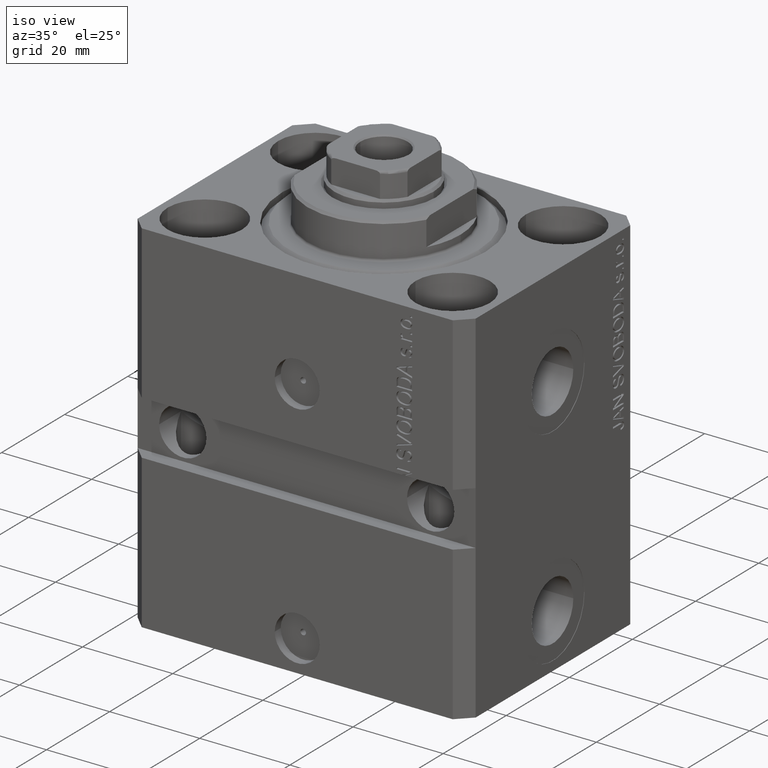
[diagram: clean part render]
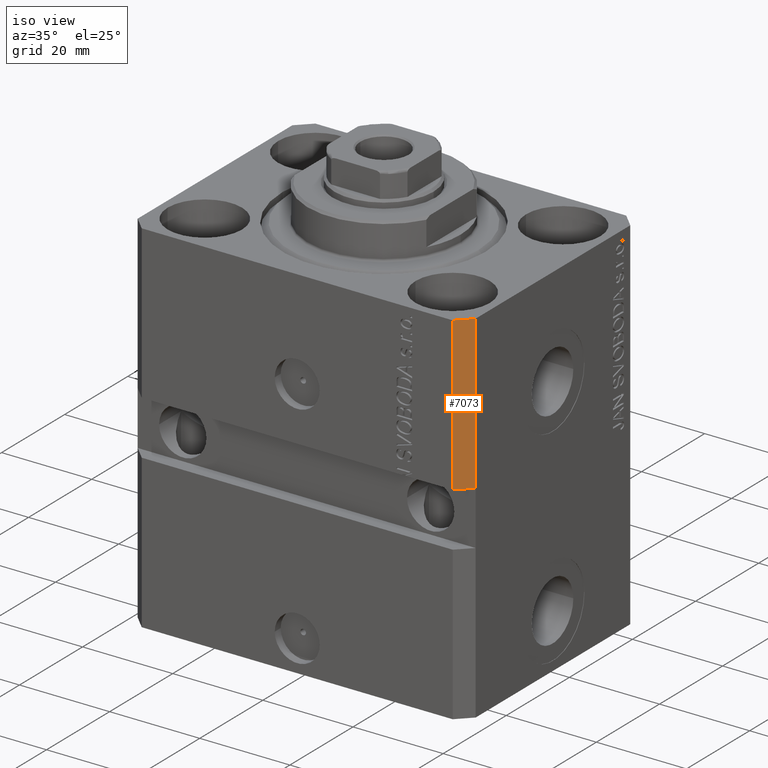
[diagram: same view with one face highlighted and labeled with its STEP entity id]
A machine part, iso view. The second image highlights one B-rep face of the part: STEP entity #7073.
In plain terms, the highlighted planar face has unit normal (0.7071, -0.7071, 0).
Its self-contained STEP definition (entity closure, byte-faithful):
#366 = VERTEX_POINT ( 'NONE', #10193 ) ;
#475 = FACE_OUTER_BOUND ( 'NONE', #25704, .T. ) ;
#598 = ORIENTED_EDGE ( 'NONE', *, *, #15013, .F. ) ;
#695 = DIRECTION ( 'NONE',  ( 0.7071067811865474617, 0.7071067811865474617, 0.000000000000000000 ) ) ;
#1530 = LINE ( 'NONE', #12574, #39055 ) ;
#7073 = ADVANCED_FACE ( 'NONE', ( #475 ), #18043, .T. ) ;
#7163 = VERTEX_POINT ( 'NONE', #8335 ) ;
#8035 = DIRECTION ( 'NONE',  ( -0.7071067811865474617, -0.7071067811865474617, -1.308410382236479511E-16 ) ) ;
#8335 = CARTESIAN_POINT ( 'NONE',  ( 34.49999999999999289, -27.49999999999999289, -33.99999999999998579 ) ) ;
#8467 = EDGE_CURVE ( 'NONE', #366, #7163, #14817, .T. ) ;
#8583 = AXIS2_PLACEMENT_3D ( 'NONE', #34997, #41541, #695 ) ;
#10193 = CARTESIAN_POINT ( 'NONE',  ( 37.49999999999999289, -24.49999999999999289, -33.99999999999998579 ) ) ;
#12574 = CARTESIAN_POINT ( 'NONE',  ( 37.49999999999999289, -24.50000000000000000, -80.00000000000000000 ) ) ;
#13551 = VERTEX_POINT ( 'NONE', #42171 ) ;
#13638 = EDGE_CURVE ( 'NONE', #366, #13551, #1530, .T. ) ;
#14817 = LINE ( 'NONE', #35136, #36038 ) ;
#15013 = EDGE_CURVE ( 'NONE', #7163, #24788, #19213, .T. ) ;
#16360 = CARTESIAN_POINT ( 'NONE',  ( 34.49999999999999289, -27.49999999999999645, 0.000000000000000000 ) ) ;
#17874 = ORIENTED_EDGE ( 'NONE', *, *, #13638, .T. ) ;
#18043 = PLANE ( 'NONE',  #8583 ) ;
#18343 = DIRECTION ( 'NONE',  ( 0.000000000000000000, 0.000000000000000000, 1.000000000000000000 ) ) ;
#19213 = LINE ( 'NONE', #39757, #23226 ) ;
#23226 = VECTOR ( 'NONE', #18343, 1000.000000000000000 ) ;
#24788 = VERTEX_POINT ( 'NONE', #31355 ) ;
#25704 = EDGE_LOOP ( 'NONE', ( #31661, #17874, #38954, #598 ) ) ;
#27596 = EDGE_CURVE ( 'NONE', #24788, #13551, #44133, .T. ) ;
#31355 = CARTESIAN_POINT ( 'NONE',  ( 34.49999999999999289, -27.49999999999999645, 0.000000000000000000 ) ) ;
#31661 = ORIENTED_EDGE ( 'NONE', *, *, #8467, .F. ) ;
#34997 = CARTESIAN_POINT ( 'NONE',  ( 34.49999999999999289, -27.49999999999999645, -80.00000000000000000 ) ) ;
#35136 = CARTESIAN_POINT ( 'NONE',  ( 34.49999999999998579, -27.50000000000000000, -33.99999999999998579 ) ) ;
#36038 = VECTOR ( 'NONE', #8035, 1000.000000000000114 ) ;
#36692 = DIRECTION ( 'NONE',  ( 0.7071067811865474617, 0.7071067811865474617, 0.000000000000000000 ) ) ;
#37181 = VECTOR ( 'NONE', #36692, 1000.000000000000114 ) ;
#38954 = ORIENTED_EDGE ( 'NONE', *, *, #27596, .F. ) ;
#39055 = VECTOR ( 'NONE', #39869, 1000.000000000000000 ) ;
#39757 = CARTESIAN_POINT ( 'NONE',  ( 34.49999999999999289, -27.49999999999999645, -80.00000000000000000 ) ) ;
#39869 = DIRECTION ( 'NONE',  ( 0.000000000000000000, 0.000000000000000000, 1.000000000000000000 ) ) ;
#41541 = DIRECTION ( 'NONE',  ( 0.7071067811865475727, -0.7071067811865475727, 0.000000000000000000 ) ) ;
#42171 = CARTESIAN_POINT ( 'NONE',  ( 37.49999999999999289, -24.50000000000000000, 0.000000000000000000 ) ) ;
#44133 = LINE ( 'NONE', #16360, #37181 ) ;